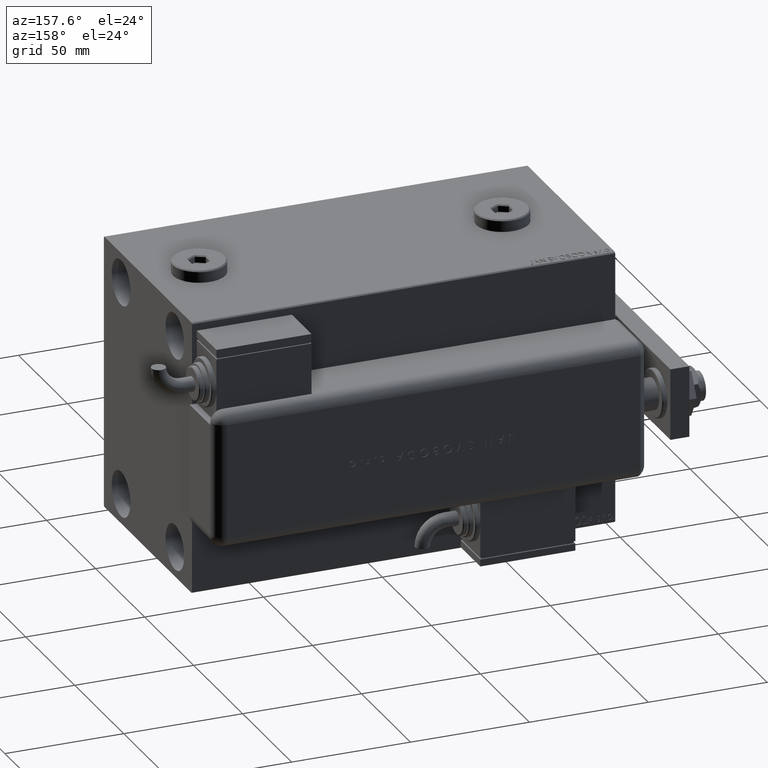
[diagram: clean part render]
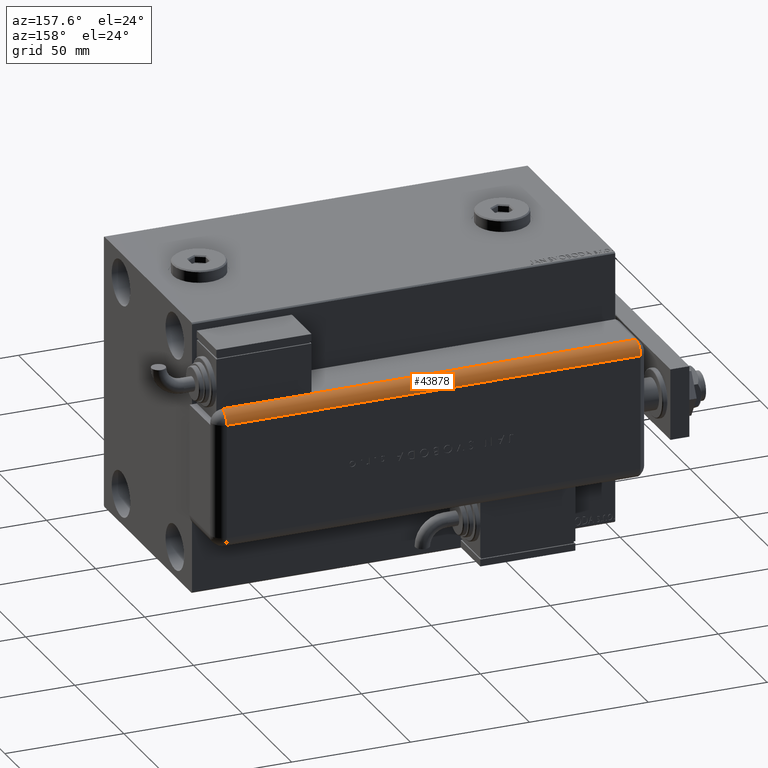
[diagram: same view with one face highlighted and labeled with its STEP entity id]
A machine part, auxiliary view. The second image highlights one B-rep face of the part: STEP entity #43878.
In plain terms, the highlighted cylindrical surface (edge-blend (fillet) strip) has radius 5 mm, axis along (1, -0, -0).
Its self-contained STEP definition (entity closure, byte-faithful):
#620 = CARTESIAN_POINT ( 'NONE',  ( 24.00000000000000000, 20.79999999999998650, 179.0000000000000000 ) ) ;
#905 = LINE ( 'NONE', #44985, #54572 ) ;
#1041 = LINE ( 'NONE', #53267, #47563 ) ;
#3409 = AXIS2_PLACEMENT_3D ( 'NONE', #620, #4666, #4965 ) ;
#3752 = CARTESIAN_POINT ( 'NONE',  ( 24.00000000000000000, 20.79999999999998650, 5.000000000000004441 ) ) ;
#3831 = CIRCLE ( 'NONE', #48210, 5.000000000000000888 ) ;
#4420 = EDGE_CURVE ( 'NONE', #28167, #29725, #1041, .T. ) ;
#4666 = DIRECTION ( 'NONE',  ( -0.000000000000000000, -0.000000000000000000, 1.000000000000000000 ) ) ;
#4965 = DIRECTION ( 'NONE',  ( -1.000000000000000000, 0.000000000000000000, 0.000000000000000000 ) ) ;
#5951 = LINE ( 'NONE', #26880, #23758 ) ;
#6934 = FACE_OUTER_BOUND ( 'NONE', #22307, .T. ) ;
#8650 = ORIENTED_EDGE ( 'NONE', *, *, #42127, .F. ) ;
#12171 = DIRECTION ( 'NONE',  ( 0.000000000000000000, 0.000000000000000000, -1.000000000000000000 ) ) ;
#14261 = CIRCLE ( 'NONE', #3409, 5.000000000000000888 ) ;
#14651 = DIRECTION ( 'NONE',  ( -0.000000000000000000, -0.000000000000000000, 1.000000000000000000 ) ) ;
#17330 = DIRECTION ( 'NONE',  ( 0.000000000000000000, 0.000000000000000000, -1.000000000000000000 ) ) ;
#20635 = DIRECTION ( 'NONE',  ( 1.000000000000000000, -3.261280134836396706E-14, 0.000000000000000000 ) ) ;
#20750 = VERTEX_POINT ( 'NONE', #22428 ) ;
#22307 = EDGE_LOOP ( 'NONE', ( #40625, #56414, #32738, #8650, #30939, #43976 ) ) ;
#22428 = CARTESIAN_POINT ( 'NONE',  ( 28.99999999999999645, 20.79999999999998650, 43.00000000000000000 ) ) ;
#22557 = DIRECTION ( 'NONE',  ( -0.000000000000000000, -0.000000000000000000, 1.000000000000000000 ) ) ;
#23758 = VECTOR ( 'NONE', #17330, 1000.000000000000000 ) ;
#26880 = CARTESIAN_POINT ( 'NONE',  ( 24.00000000000000000, 25.79999999999998295, 179.0000000000000000 ) ) ;
#28167 = VERTEX_POINT ( 'NONE', #38875 ) ;
#29131 = CARTESIAN_POINT ( 'NONE',  ( 28.99999999999999645, 20.79999999999998650, 179.0000000000000000 ) ) ;
#29685 = CARTESIAN_POINT ( 'NONE',  ( 24.00000000000000000, 25.79999999999998295, 5.000000000000004441 ) ) ;
#29725 = VERTEX_POINT ( 'NONE', #39357 ) ;
#30939 = ORIENTED_EDGE ( 'NONE', *, *, #51012, .F. ) ;
#30985 = DIRECTION ( 'NONE',  ( -1.000000000000000000, 0.000000000000000000, 0.000000000000000000 ) ) ;
#31071 = EDGE_CURVE ( 'NONE', #29725, #20750, #3831, .T. ) ;
#31592 = CYLINDRICAL_SURFACE ( 'NONE', #56484, 5.000000000000000888 ) ;
#32738 = ORIENTED_EDGE ( 'NONE', *, *, #51856, .T. ) ;
#35090 = DIRECTION ( 'NONE',  ( -0.000000000000000000, -0.000000000000000000, 1.000000000000000000 ) ) ;
#35803 = CARTESIAN_POINT ( 'NONE',  ( 24.00000000000000000, 25.79999999999998295, 179.0000000000000000 ) ) ;
#38875 = CARTESIAN_POINT ( 'NONE',  ( 28.99599839871871865, 21.00000000000000000, 5.000000000000004441 ) ) ;
#39357 = CARTESIAN_POINT ( 'NONE',  ( 28.99599839871871865, 20.99999999999999289, 43.00000000000000000 ) ) ;
#40625 = ORIENTED_EDGE ( 'NONE', *, *, #31071, .F. ) ;
#41941 = VERTEX_POINT ( 'NONE', #29685 ) ;
#42127 = EDGE_CURVE ( 'NONE', #61014, #41941, #5951, .T. ) ;
#43878 = ADVANCED_FACE ( 'NONE', ( #6934 ), #31592, .T. ) ;
#43976 = ORIENTED_EDGE ( 'NONE', *, *, #46194, .F. ) ;
#44540 = VERTEX_POINT ( 'NONE', #29131 ) ;
#44985 = CARTESIAN_POINT ( 'NONE',  ( 28.99999999999999645, 20.79999999999998650, 179.0000000000000000 ) ) ;
#46194 = EDGE_CURVE ( 'NONE', #20750, #44540, #905, .T. ) ;
#47563 = VECTOR ( 'NONE', #14651, 1000.000000000000000 ) ;
#48210 = AXIS2_PLACEMENT_3D ( 'NONE', #53116, #58361, #20635 ) ;
#50473 = CARTESIAN_POINT ( 'NONE',  ( 24.00000000000000000, 20.79999999999998650, 179.0000000000000000 ) ) ;
#51012 = EDGE_CURVE ( 'NONE', #44540, #61014, #14261, .T. ) ;
#51856 = EDGE_CURVE ( 'NONE', #28167, #41941, #57744, .T. ) ;
#53116 = CARTESIAN_POINT ( 'NONE',  ( 24.00000000000000000, 20.79999999999998650, 42.99999999999998579 ) ) ;
#53267 = CARTESIAN_POINT ( 'NONE',  ( 28.99599839871871865, 20.99999999999997513, 179.0000000000000000 ) ) ;
#54572 = VECTOR ( 'NONE', #35090, 1000.000000000000000 ) ;
#54797 = AXIS2_PLACEMENT_3D ( 'NONE', #3752, #22557, #55657 ) ;
#55657 = DIRECTION ( 'NONE',  ( -1.000000000000000000, 0.000000000000000000, 0.000000000000000000 ) ) ;
#56414 = ORIENTED_EDGE ( 'NONE', *, *, #4420, .F. ) ;
#56484 = AXIS2_PLACEMENT_3D ( 'NONE', #50473, #12171, #30985 ) ;
#57744 = CIRCLE ( 'NONE', #54797, 5.000000000000000888 ) ;
#58361 = DIRECTION ( 'NONE',  ( -0.000000000000000000, 0.000000000000000000, -1.000000000000000000 ) ) ;
#61014 = VERTEX_POINT ( 'NONE', #35803 ) ;